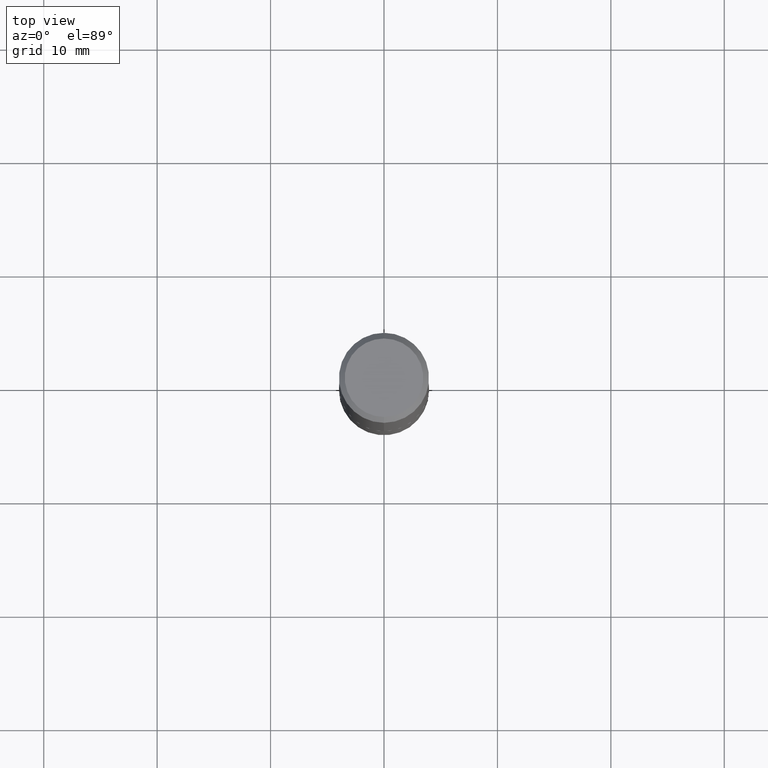
[diagram: clean part render]
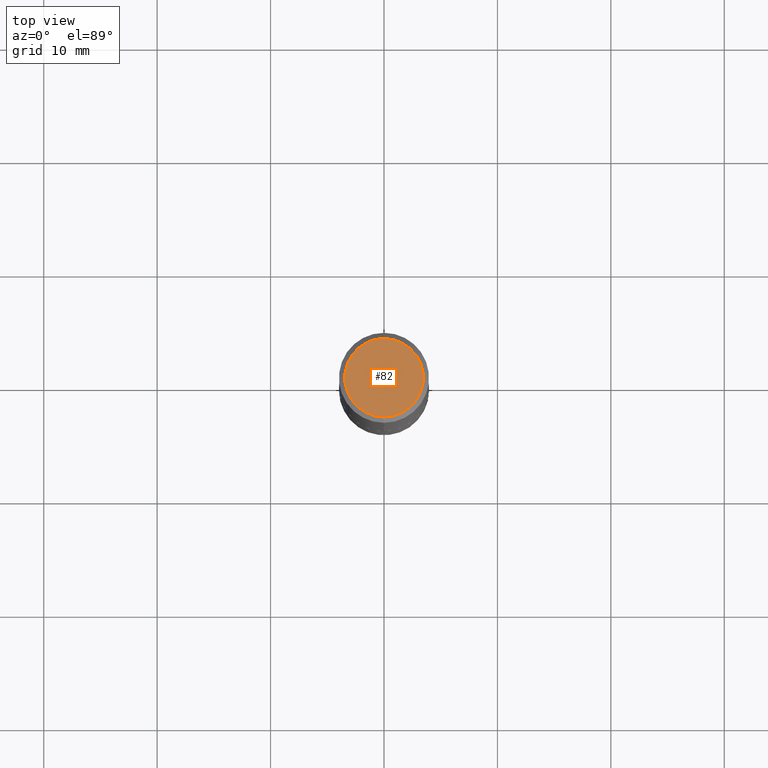
[diagram: same view with one face highlighted and labeled with its STEP entity id]
A machine part, top view. The second image highlights one B-rep face of the part: STEP entity #82.
In plain terms, the highlighted planar face has unit normal (0, -0, -1).
Its self-contained STEP definition (entity closure, byte-faithful):
#3 = DIRECTION ( 'NONE',  ( 6.982962677686265922E-15, 1.000000000000000000, -3.492234837659248797E-15 ) ) ;
#34 = DIRECTION ( 'NONE',  ( 2.444942640774083230E-29, -3.492234837659248797E-15, -1.000000000000000000 ) ) ;
#48 = EDGE_CURVE ( 'NONE', #146, #283, #182, .T. ) ;
#67 = CARTESIAN_POINT ( 'NONE',  ( -2.507214449071003411E-45, 3.581180800935380425E-31, 1.025469639761039184E-16 ) ) ;
#82 = ADVANCED_FACE ( 'NONE', ( #193 ), #325, .F. ) ;
#88 = DIRECTION ( 'NONE',  ( -6.982962677686266711E-15, -1.000000000000000000, 3.492234837659249191E-15 ) ) ;
#139 = EDGE_CURVE ( 'NONE', #283, #146, #315, .T. ) ;
#146 = VERTEX_POINT ( 'NONE', #332 ) ;
#172 = ORIENTED_EDGE ( 'NONE', *, *, #139, .T. ) ;
#182 = CIRCLE ( 'NONE', #413, 0.1362499999999998990 ) ;
#193 = FACE_OUTER_BOUND ( 'NONE', #292, .T. ) ;
#198 = DIRECTION ( 'NONE',  ( -2.444942640774083791E-29, 3.492234837659248797E-15, 1.000000000000000000 ) ) ;
#228 = CARTESIAN_POINT ( 'NONE',  ( 1.021258291611616270E-15, 0.1362499999999998990, -3.732700326549684147E-16 ) ) ;
#240 = DIRECTION ( 'NONE',  ( -2.444942640774083791E-29, 3.492234837659248797E-15, 1.000000000000000000 ) ) ;
#283 = VERTEX_POINT ( 'NONE', #228 ) ;
#292 = EDGE_LOOP ( 'NONE', ( #172, #366 ) ) ;
#315 = CIRCLE ( 'NONE', #391, 0.1362499999999998990 ) ;
#325 = PLANE ( 'NONE',  #338 ) ;
#332 = CARTESIAN_POINT ( 'NONE',  ( -1.003347832174085884E-15, -0.1362499999999998990, 5.783639606071762514E-16 ) ) ;
#338 = AXIS2_PLACEMENT_3D ( 'NONE', #417, #34, #3 ) ;
#351 = DIRECTION ( 'NONE',  ( -6.982962677686266711E-15, -1.000000000000000000, 3.492234837659249191E-15 ) ) ;
#366 = ORIENTED_EDGE ( 'NONE', *, *, #48, .T. ) ;
#391 = AXIS2_PLACEMENT_3D ( 'NONE', #393, #240, #88 ) ;
#393 = CARTESIAN_POINT ( 'NONE',  ( -2.507214449071003411E-45, 3.581180800935380425E-31, 1.025469639761039184E-16 ) ) ;
#413 = AXIS2_PLACEMENT_3D ( 'NONE', #67, #198, #351 ) ;
#417 = CARTESIAN_POINT ( 'NONE',  ( 9.514286648347531688E-16, 0.1362499999999998990, -4.245435146430203739E-16 ) ) ;